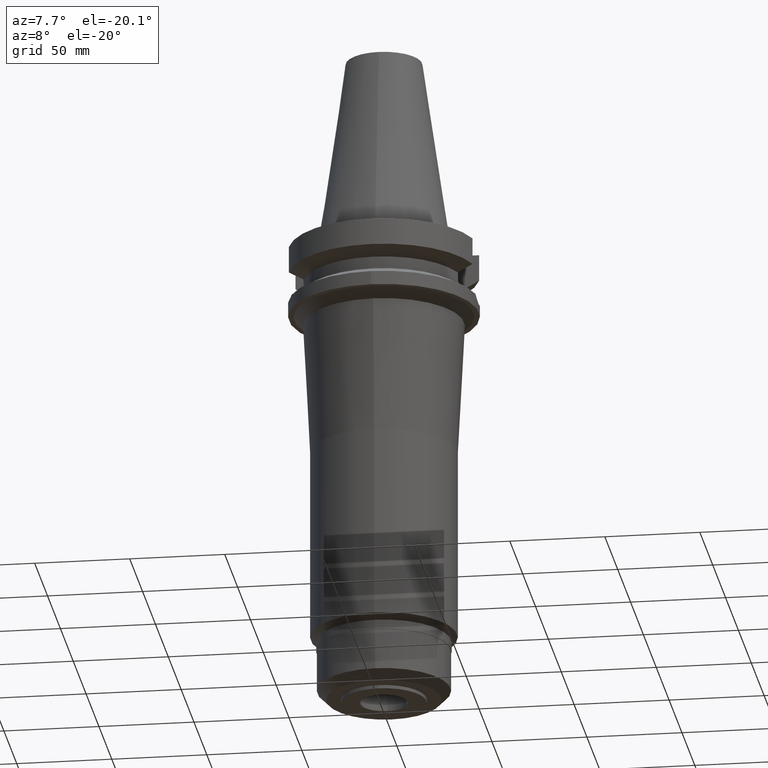
[diagram: clean part render]
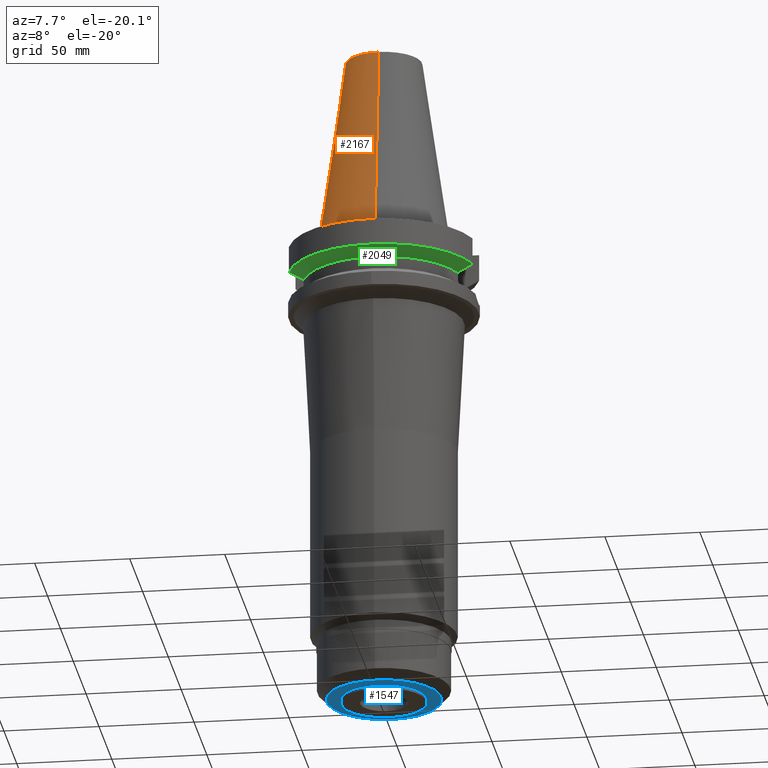
[diagram: same view with three faces highlighted in distinct colors, each labeled with its STEP entity id]
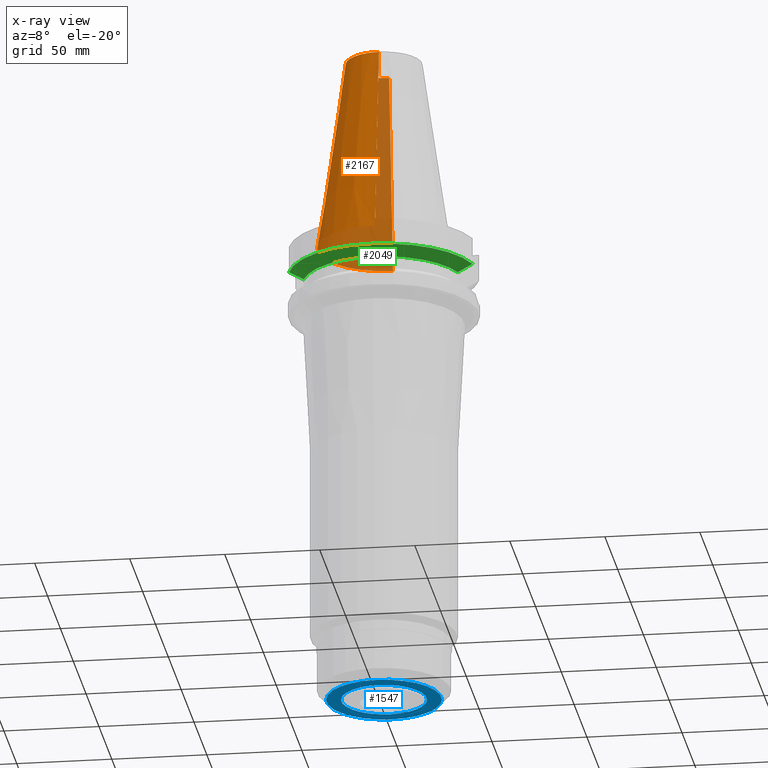
[diagram: x-ray of the same camera — body ghosted, the three highlighted faces saturated]
A machine part, auxiliary view with three faces highlighted in distinct colors.
The next image is the same camera in x-ray (body ghosted, the three faces saturated) — at least one of them is partly hidden behind the body in this view.
Their STEP definitions:

[orange] entity #2167 — the highlighted conical surface has half-angle 8.297 deg.
#1063=DIRECTION('',(0.E0,-1.443043893539E-1,-9.895333461856E-1));
#1064=VECTOR('',#1063,1.028767755957E2);
#1065=CARTESIAN_POINT('',(0.E0,-2.007942971896E1,1.018E2));
#1066=LINE('',#1065,#1064);
#1070=CARTESIAN_POINT('',(0.E0,1.847992019913E-14,3.979039320257E-13));
#1071=DIRECTION('',(0.E0,0.E0,-1.E0));
#1072=DIRECTION('',(0.E0,-1.E0,0.E0));
#1073=AXIS2_PLACEMENT_3D('',#1070,#1071,#1072);
#1078=DIRECTION('',(0.E0,1.443043893539E-1,-9.895333461856E-1));
#1079=VECTOR('',#1078,1.028767755957E2);
#1080=CARTESIAN_POINT('',(0.E0,2.007942971896E1,1.018E2));
#1081=LINE('',#1080,#1079);
#1093=CARTESIAN_POINT('',(0.E0,1.847992019913E-14,1.018E2));
#1094=DIRECTION('',(0.E0,0.E0,-1.E0));
#1095=DIRECTION('',(0.E0,-1.E0,0.E0));
#1096=AXIS2_PLACEMENT_3D('',#1093,#1094,#1095);
#1282=CARTESIAN_POINT('',(0.E0,3.4925E1,5.542233338929E-13));
#1283=VERTEX_POINT('',#1282);
#1284=CARTESIAN_POINT('',(0.E0,-3.4925E1,5.542233338929E-13));
#1285=VERTEX_POINT('',#1284);
#1286=CARTESIAN_POINT('',(0.E0,2.007942971896E1,1.018E2));
#1287=VERTEX_POINT('',#1286);
#1288=CARTESIAN_POINT('',(0.E0,-2.007942971896E1,1.018E2));
#1289=VERTEX_POINT('',#1288);
#2153=CARTESIAN_POINT('',(0.E0,1.847992019913E-14,5.09E1));
#2154=DIRECTION('',(0.E0,0.E0,-1.E0));
#2155=DIRECTION('',(0.E0,-1.E0,0.E0));
#2156=AXIS2_PLACEMENT_3D('',#2153,#2154,#2155);
#2157=CONICAL_SURFACE('',#2156,2.750221485948E1,8.297E0);
#2159=ORIENTED_EDGE('',*,*,#2158,.F.);
#2161=ORIENTED_EDGE('',*,*,#2160,.F.);
#2163=ORIENTED_EDGE('',*,*,#2162,.T.);
#2164=ORIENTED_EDGE('',*,*,#2146,.T.);
#2165=EDGE_LOOP('',(#2159,#2161,#2163,#2164));
#2166=FACE_OUTER_BOUND('',#2165,.F.);
#1074=CIRCLE('',#1073,3.4925E1);
#1097=CIRCLE('',#1096,2.007942971896E1);
#2146=EDGE_CURVE('',#1285,#1283,#1074,.T.);
#2158=EDGE_CURVE('',#1287,#1283,#1081,.T.);
#2160=EDGE_CURVE('',#1289,#1287,#1097,.T.);
#2162=EDGE_CURVE('',#1289,#1285,#1066,.T.);
#2167=ADVANCED_FACE('',(#2166),#2157,.T.);

[blue] entity #1547 — the highlighted planar face has unit normal (0, 0, -1).
#246=CARTESIAN_POINT('',(0.E0,-1.814926556336E-14,-2.506E2));
#247=DIRECTION('',(0.E0,0.E0,1.E0));
#248=DIRECTION('',(0.E0,-1.E0,0.E0));
#249=AXIS2_PLACEMENT_3D('',#246,#247,#248);
#254=CARTESIAN_POINT('',(0.E0,-1.814926556336E-14,-2.506E2));
#255=DIRECTION('',(0.E0,0.E0,1.E0));
#256=DIRECTION('',(0.E0,1.E0,0.E0));
#257=AXIS2_PLACEMENT_3D('',#254,#255,#256);
#262=CARTESIAN_POINT('',(0.E0,2.688222188808E-14,-2.506E2));
#263=DIRECTION('',(0.E0,0.E0,-1.E0));
#264=DIRECTION('',(0.E0,-1.E0,0.E0));
#265=AXIS2_PLACEMENT_3D('',#262,#263,#264);
#270=CARTESIAN_POINT('',(0.E0,2.688222188808E-14,-2.506E2));
#271=DIRECTION('',(0.E0,0.E0,-1.E0));
#272=DIRECTION('',(0.E0,1.E0,0.E0));
#273=AXIS2_PLACEMENT_3D('',#270,#271,#272);
#1165=CARTESIAN_POINT('',(0.E0,2.24E1,-2.506E2));
#1166=VERTEX_POINT('',#1165);
#1167=CARTESIAN_POINT('',(0.E0,-2.24E1,-2.506E2));
#1168=VERTEX_POINT('',#1167);
#1169=CARTESIAN_POINT('',(0.E0,-3.02E1,-2.506E2));
#1170=CARTESIAN_POINT('',(0.E0,3.02E1,-2.506E2));
#1171=VERTEX_POINT('',#1169);
#1172=VERTEX_POINT('',#1170);
#1532=CARTESIAN_POINT('',(0.E0,-1.844318079516E-14,-2.506E2));
#1533=DIRECTION('',(0.E0,0.E0,-1.E0));
#1534=DIRECTION('',(0.E0,-1.E0,0.E0));
#1535=AXIS2_PLACEMENT_3D('',#1532,#1533,#1534);
#1536=PLANE('',#1535);
#1538=ORIENTED_EDGE('',*,*,#1537,.T.);
#1540=ORIENTED_EDGE('',*,*,#1539,.T.);
#1541=EDGE_LOOP('',(#1538,#1540));
#1542=FACE_OUTER_BOUND('',#1541,.F.);
#1543=ORIENTED_EDGE('',*,*,#1525,.T.);
#1544=ORIENTED_EDGE('',*,*,#1514,.T.);
#1545=EDGE_LOOP('',(#1543,#1544));
#1546=FACE_BOUND('',#1545,.F.);
#250=CIRCLE('',#249,3.02E1);
#258=CIRCLE('',#257,3.02E1);
#266=CIRCLE('',#265,2.24E1);
#274=CIRCLE('',#273,2.24E1);
#1514=EDGE_CURVE('',#1166,#1168,#274,.T.);
#1525=EDGE_CURVE('',#1168,#1166,#266,.T.);
#1537=EDGE_CURVE('',#1171,#1172,#250,.T.);
#1539=EDGE_CURVE('',#1172,#1171,#258,.T.);
#1547=ADVANCED_FACE('',(#1542,#1546),#1536,.T.);

[green] entity #2049 — the highlighted conical surface has half-angle 60 deg.
#893=CARTESIAN_POINT('',(-4.832056912814E1,-1.285000385728E1,
-1.566265768251E1));
#894=CARTESIAN_POINT('',(-4.745408729221E1,-1.285000385728E1,
-1.614611802317E1));
#895=CARTESIAN_POINT('',(-4.572065044709E1,-1.284999774293E1,
-1.711204883166E1));
#896=CARTESIAN_POINT('',(-4.311729623692E1,-1.285000211383E1,
-1.855526471611E1));
#897=CARTESIAN_POINT('',(-4.138011668042E1,-1.284999657245E1,
-1.951445436177E1));
#898=CARTESIAN_POINT('',(-4.051083297203E1,-1.284999657245E1,
-1.999284555870E1));
#937=CARTESIAN_POINT('',(0.E0,1.006319759054E-14,-1.566269223573E1));
#938=DIRECTION('',(0.E0,0.E0,1.E0));
#939=DIRECTION('',(-9.664114030784E-1,-2.57E-1,0.E0));
#940=AXIS2_PLACEMENT_3D('',#937,#938,#939);
#945=CARTESIAN_POINT('',(0.E0,1.006319759054E-14,-1.566269223573E1));
#946=DIRECTION('',(0.E0,0.E0,1.E0));
#947=DIRECTION('',(0.E0,-1.E0,0.E0));
#948=AXIS2_PLACEMENT_3D('',#945,#946,#947);
#953=CARTESIAN_POINT('',(0.E0,1.006319759054E-14,-1.999281925465E1));
#954=DIRECTION('',(0.E0,0.E0,-1.E0));
#955=DIRECTION('',(9.531960443487E-1,-3.023529411765E-1,0.E0));
#956=AXIS2_PLACEMENT_3D('',#953,#954,#955);
#961=CARTESIAN_POINT('',(0.E0,1.006319759054E-14,-1.999281925465E1));
#962=DIRECTION('',(0.E0,0.E0,-1.E0));
#963=DIRECTION('',(0.E0,-1.E0,0.E0));
#964=AXIS2_PLACEMENT_3D('',#961,#962,#963);
#983=CARTESIAN_POINT('',(4.051083297143E1,-1.284999657436E1,-1.999284554403E1));
#984=CARTESIAN_POINT('',(4.138011667055E1,-1.284999657436E1,-1.951445435222E1));
#985=CARTESIAN_POINT('',(4.311729628367E1,-1.285000211311E1,-1.855526479787E1));
#986=CARTESIAN_POINT('',(4.572065049593E1,-1.284999774258E1,-1.711204891776E1));
#987=CARTESIAN_POINT('',(4.745408728436E1,-1.285000385858E1,-1.614611801576E1));
#988=CARTESIAN_POINT('',(4.832056912780E1,-1.285000385858E1,-1.566265767091E1));
#1244=CARTESIAN_POINT('',(-4.051083297203E1,-1.284999657245E1,
-1.999284555870E1));
#1245=VERTEX_POINT('',#1244);
#1246=CARTESIAN_POINT('',(4.051083188482E1,-1.285E1,-1.999281925465E1));
#1247=CARTESIAN_POINT('',(0.E0,-4.25E1,-1.999281925465E1));
#1248=VERTEX_POINT('',#1246);
#1249=VERTEX_POINT('',#1247);
#1260=CARTESIAN_POINT('',(-4.832056912814E1,-1.285000385728E1,
-1.566265768251E1));
#1261=VERTEX_POINT('',#1260);
#1291=CARTESIAN_POINT('',(0.E0,-5.E1,-1.566269223573E1));
#1292=CARTESIAN_POINT('',(4.832057015392E1,-1.285E1,-1.566269223573E1));
#1293=VERTEX_POINT('',#1291);
#1294=VERTEX_POINT('',#1292);
#2033=CARTESIAN_POINT('',(0.E0,1.006319759054E-14,-1.782775574519E1));
#2034=DIRECTION('',(0.E0,0.E0,1.E0));
#2035=DIRECTION('',(0.E0,1.E0,0.E0));
#2036=AXIS2_PLACEMENT_3D('',#2033,#2034,#2035);
#2037=CONICAL_SURFACE('',#2036,4.625E1,6.E1);
#2038=ORIENTED_EDGE('',*,*,#2009,.F.);
#2040=ORIENTED_EDGE('',*,*,#2039,.T.);
#2042=ORIENTED_EDGE('',*,*,#2041,.T.);
#2044=ORIENTED_EDGE('',*,*,#2043,.F.);
#2045=ORIENTED_EDGE('',*,*,#2023,.T.);
#2046=ORIENTED_EDGE('',*,*,#2021,.T.);
#2047=EDGE_LOOP('',(#2038,#2040,#2042,#2044,#2045,#2046));
#2048=FACE_OUTER_BOUND('',#2047,.F.);
#899=B_SPLINE_CURVE_WITH_KNOTS('',3,(#893,#894,#895,#896,#897,#898),
.UNSPECIFIED.,.F.,.F.,(4,1,1,4),(0.E0,3.333333333333E-1,6.666666666667E-1,1.E0),
.UNSPECIFIED.);
#941=CIRCLE('',#940,5.E1);
#949=CIRCLE('',#948,5.E1);
#957=CIRCLE('',#956,4.25E1);
#965=CIRCLE('',#964,4.25E1);
#989=B_SPLINE_CURVE_WITH_KNOTS('',3,(#983,#984,#985,#986,#987,#988),
.UNSPECIFIED.,.F.,.F.,(4,1,1,4),(0.E0,3.333333333333E-1,6.666666666667E-1,1.E0),
.UNSPECIFIED.);
#2009=EDGE_CURVE('',#1261,#1245,#899,.T.);
#2021=EDGE_CURVE('',#1249,#1245,#965,.T.);
#2023=EDGE_CURVE('',#1248,#1249,#957,.T.);
#2039=EDGE_CURVE('',#1261,#1293,#941,.T.);
#2041=EDGE_CURVE('',#1293,#1294,#949,.T.);
#2043=EDGE_CURVE('',#1248,#1294,#989,.T.);
#2049=ADVANCED_FACE('',(#2048),#2037,.T.);